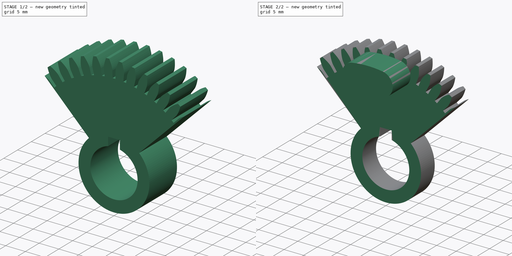
[diagram: build sequence overview — one tinted view per stage of 2, left to right]
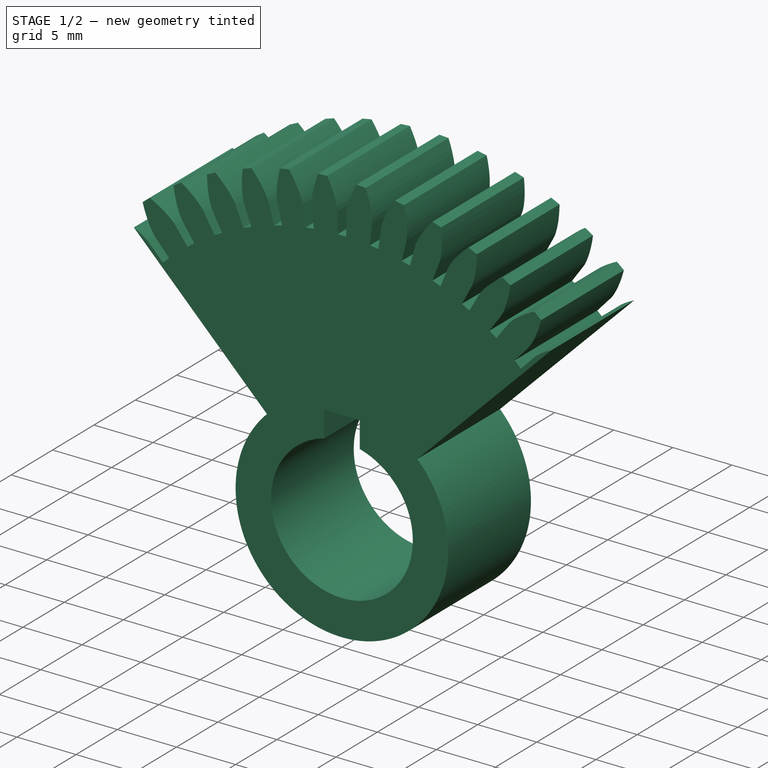
[diagram: stage 1 of 2 — iso view after this stage's code; geometry added in this stage tinted green]
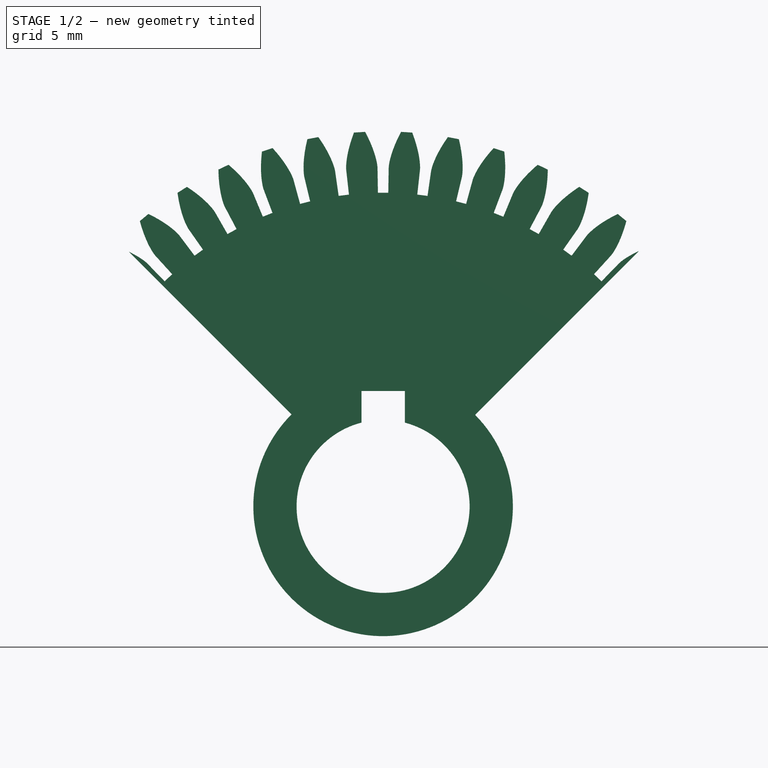
[diagram: stage 1 of 2 — front view after this stage's code; geometry added in this stage tinted green]
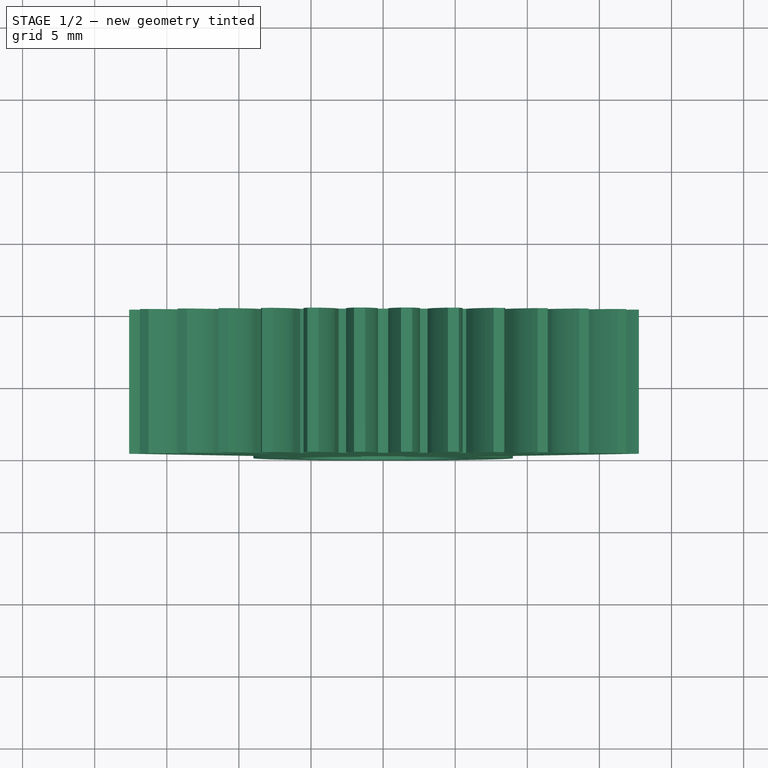
[diagram: stage 1 of 2 — top view after this stage's code; geometry added in this stage tinted green]
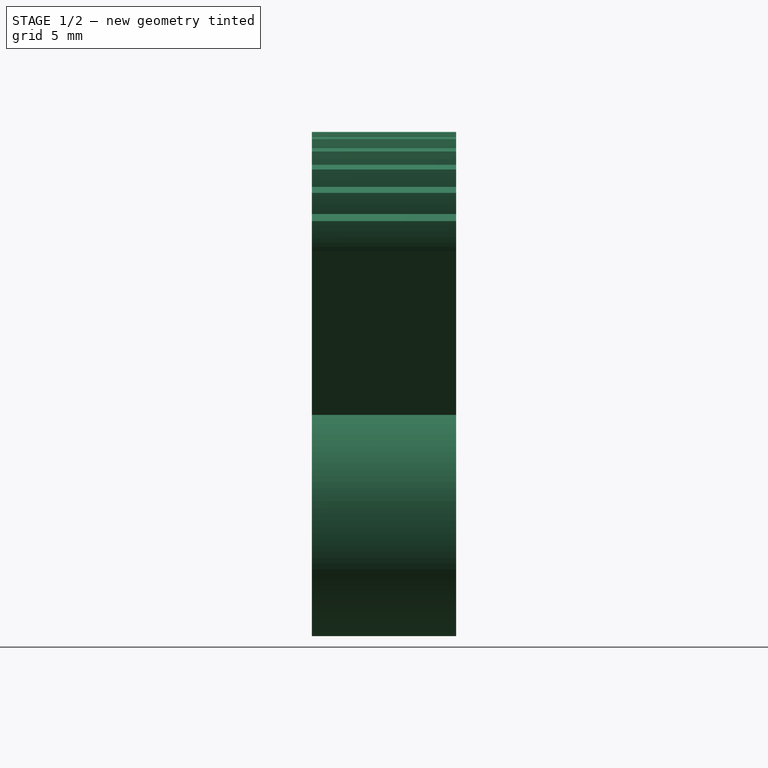
[diagram: stage 1 of 2 — right view after this stage's code; geometry added in this stage tinted green]
FCSTD DOCUMENT  (FreeCAD 1.0R39319 (Git))
Label: QuaterGear
License: All rights reserved
LicenseURL: https://en.wikipedia.org/wiki/All_rights_reserved
objects: Sketcher::SketchObject×3, PartDesign::Pocket×2, PartDesign::FeaturePython×1, App::Link×1, PartDesign::Pad×1, PartDesign::Body×1
note: 18 computed .brp shape members not serialized (recipe doc carries the construction recipe); baked Part::Feature solids carry a one-line shape summary decoded from their .brp
EXTERNAL_REF file=Robot.FCStd obj=Spreadsheet

FEATURE [PartDesign::FeaturePython] InvoluteGear001  # WARN: FeaturePython — macro-defined, semantics opaque (R4)
  AttacherType = Attacher::AttachEngine3D
  Placement = pos=(0,0,0) rot=(-1,0,0;4.71239rad)
  Suppressed = false
  addendum_diameter = 50
  angular_backlash = 0
  axle_hole = false
  axle_holesize = 10
  backlash = 0
  clearance = 2.25
  double_helix = false
  head = 0
  head_fillet = 0
  height = 10
  helix_angle = 0
  module = 1
  num_teeth = 50
  numpoints = 20
  offset_hole = false
  offset_holeoffset = 10
  offset_holesize = 10
  pitch_diameter = 50
  pressure_angle = 20
  properties_from_tool = false
  reversed_backlash = false
  root_diameter = 43.5
  root_fillet = 0
  shift = 0
  simple = false
  transverse_pitch = 3.14159
  traverse_module = 1
  undercut = false
  version = 1.3.0
  expr: angular_backlash = backlash / pitch_diameter * 360 ° / pi
FEATURE [Sketcher::SketchObject] Sketch
  ArcFitTolerance = 1e-06
  AttachmentSupport = -> [InvoluteGear001]
  FullyConstrained = false
  MakeInternals = false
  MapMode = 5
  Placement = pos=(0,-10,0) rot=(1,0,0;1.5708rad)
  expr: Constraints[10] = 360 - <<Spreadsheet>>.CutAngle * 2
  expr: Constraints[12] = <<Spreadsheet>>.ShaftDiameter * 2
  expr: Constraints[2] = <<Spreadsheet>>.CutAngle
  expr: Constraints[3] = 180 - <<Spreadsheet>>.CutAngle
  expr: Constraints[9] = 0 mm
  sketch-geometry (8):
    g0: ArcOfCircle CenterX=0 CenterY=0 CenterZ=0 NormalX=0 NormalY=0 NormalZ=1 AngleXU=0 Radius=9 StartAngle=2.35358 EndAngle=7.06597
    g1: LineSegment StartX=6.38059 StartY=6.34728 StartZ=0 EndX=39.2109 EndY=39.1775 EndZ=0
    g2: LineSegment StartX=-6.34728 StartY=6.38059 StartZ=0 EndX=-39.1775 EndY=39.2109 EndZ=0
    g3: ArcOfCircle CenterX=0 CenterY=0 CenterZ=0 NormalX=0 NormalY=0 NormalZ=1 AngleXU=0 Radius=55.429 StartAngle=2.35577 EndAngle=7.06816
    g4: ArcOfCircle CenterX=0 CenterY=0 CenterZ=0 NormalX=0 NormalY=0 NormalZ=1 AngleXU=0 Radius=6 StartAngle=1.82348 EndAngle=7.60029
    g5: LineSegment StartX=-1.5 StartY=8 StartZ=0 EndX=-1.5 EndY=5.80948 EndZ=0
    g6: LineSegment StartX=1.50588 StartY=5.80795 StartZ=0 EndX=1.50588 EndY=8 EndZ=0
    g7: LineSegment StartX=1.50588 StartY=8 StartZ=0 EndX=-1.5 EndY=8 EndZ=0
  constraints (22):
    c: Diameter(g0) = 18
    c: PointOnObject(g0,g-2)
    c: Angle(g-1,g1) = 0.785398
    c: Angle(g-1,g2) = 2.35619
    c: Coincident(g3,g0)
    c: Coincident(g2,g3)
    c: Coincident(g1,g3)
    c: Coincident(g2,g0)
    c: Coincident(g1,g0)
    c: DistanceY(g0,g-1) = 0
    c: Angle(g0) = 4.71239
    c: Coincident(g4,g0)
    c: Diameter(g4) = 12
    c: Coincident(g6,g7)
    c: Coincident(g7,g5)
    c: Vertical(g5)
    c: Vertical(g6)
    c: Horizontal(g7)
    c: Distance(g-2,g5) = 1.5
    c: Distance(g4,g7) = 2
    c: Coincident(g5,g4)
    c: Coincident(g6,g4)
FEATURE [PartDesign::Pocket] Pocket
  BaseFeature = -> InvoluteGear001
  Direction = (0,1,-2e-16)
  Length = 5
  Length2 = 5
  Placement = pos=(0,0,0) rot=(-1,0,0;4.71239rad)
  Profile = -> Sketch
  ReferenceAxis = -> Sketch [N_Axis]
  Refine = true
  Suppressed = false
  Type = 1
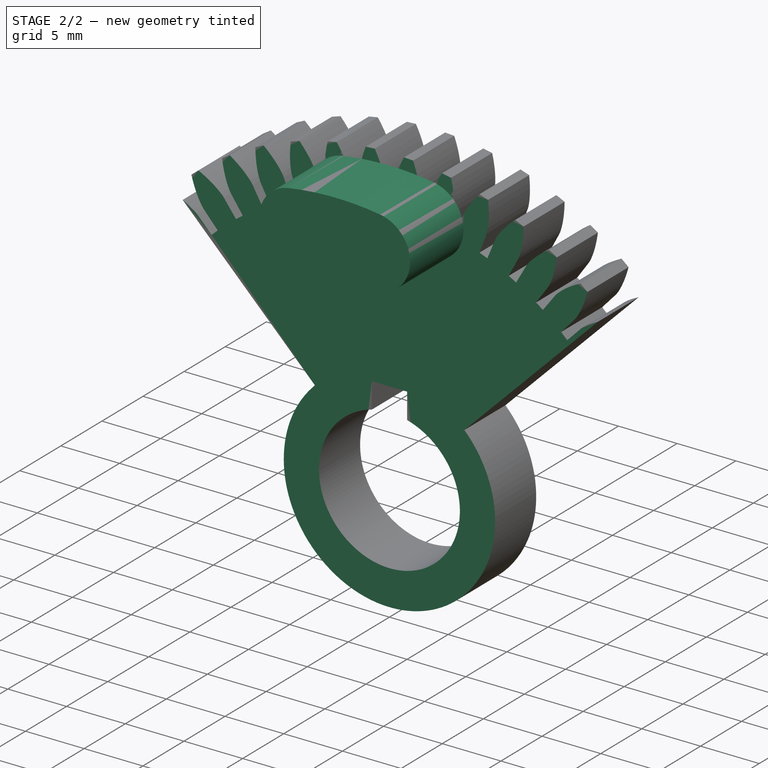
[diagram: stage 2 of 2 — iso view after this stage's code; geometry added in this stage tinted green]
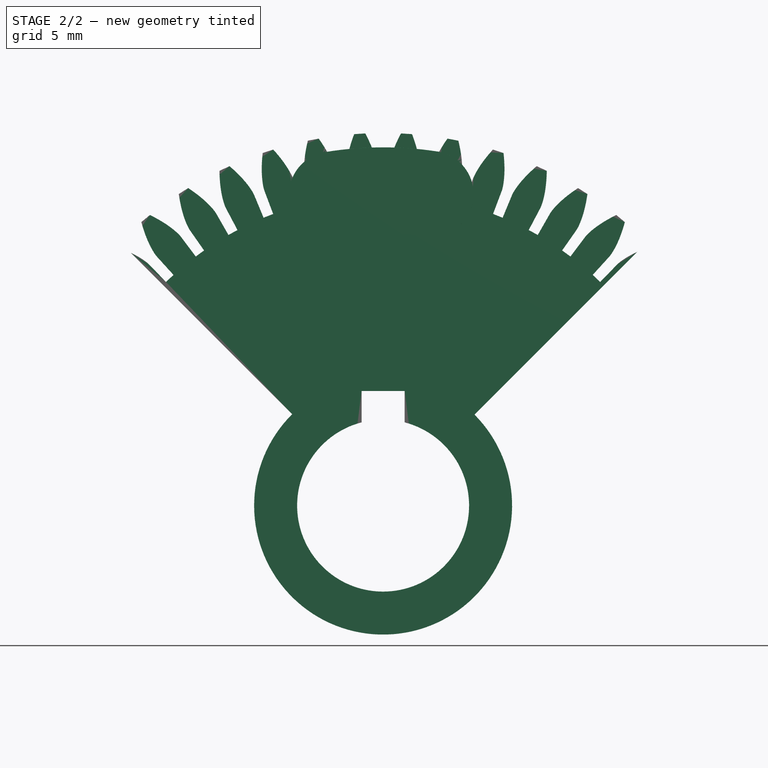
[diagram: stage 2 of 2 — front view after this stage's code; geometry added in this stage tinted green]
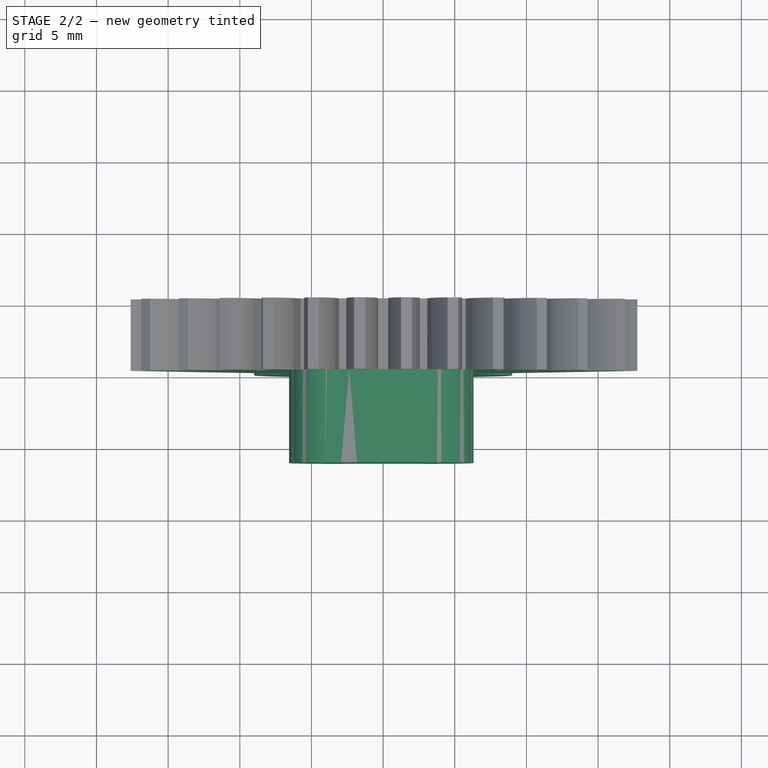
[diagram: stage 2 of 2 — top view after this stage's code; geometry added in this stage tinted green]
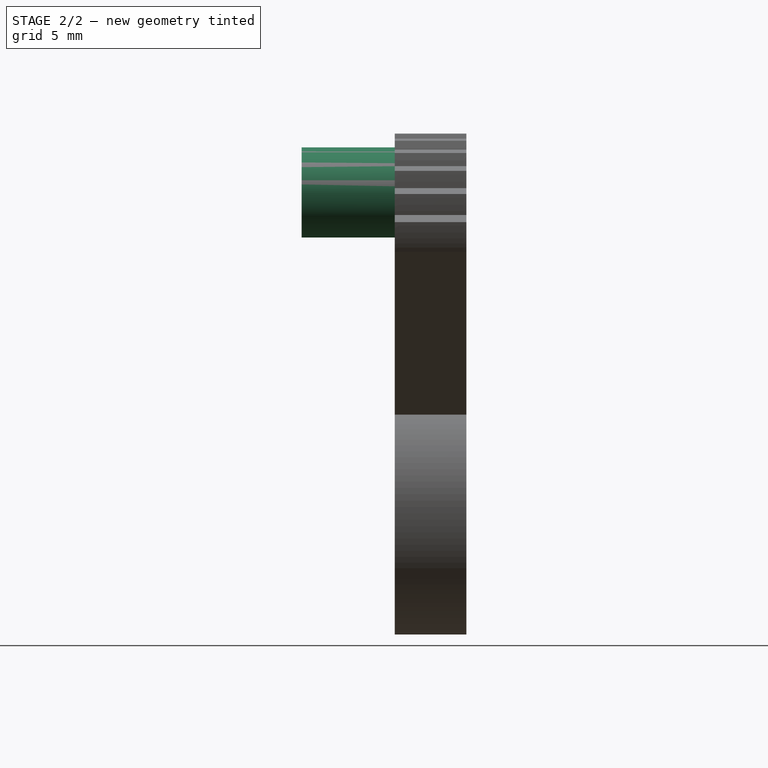
[diagram: stage 2 of 2 — right view after this stage's code; geometry added in this stage tinted green]
FEATURE [App::Link] Link  label="Spreadsheet"
  LinkedObject = -> <external Robot.FCStd>#Spreadsheet
FEATURE [Sketcher::SketchObject] Sketch001
  ArcFitTolerance = 1e-06
  AttachmentSupport = -> [Pocket]
  FullyConstrained = true
  MakeInternals = false
  MapMode = 5
  Placement = pos=(0,-10,0) rot=(1,0,0;1.5708rad)
  sketch-geometry (1):
    g0: Circle CenterX=0 CenterY=0 CenterZ=0 NormalX=0 NormalY=0 NormalZ=1 AngleXU=0 Radius=30
  constraints (2):
    c: Diameter(g0) = 60
    c: Coincident(g0,g-1)
FEATURE [PartDesign::Pocket] Pocket001
  BaseFeature = -> Pocket
  Direction = (0,1,-2e-16)
  Length = 5
  Length2 = 5
  Placement = pos=(0,0,0) rot=(-1,0,0;4.71239rad)
  Profile = -> Sketch001
  ReferenceAxis = -> Sketch001 [N_Axis]
  Refine = true
  Suppressed = false
  Type = 0
FEATURE [Sketcher::SketchObject] Sketch002
  ArcFitTolerance = 1e-06
  AttachmentSupport = -> [Pocket001]
  FullyConstrained = false
  MakeInternals = false
  MapMode = 5
  Placement = pos=(0,-5,0) rot=(1,0,0;1.5708rad)
  sketch-geometry (4):
    g0: ArcOfCircle CenterX=0 CenterY=0 CenterZ=0 NormalX=0 NormalY=0 NormalZ=1 AngleXU=0 Radius=25 StartAngle=1.41976 EndAngle=1.73335
    g1: ArcOfCircle CenterX=-3.56037 CenterY=21.71 CenterZ=0 NormalX=0 NormalY=0 NormalZ=1 AngleXU=0 Radius=3 StartAngle=1.73335 EndAngle=4.87494
    g2: ArcOfCircle CenterX=3.31009 CenterY=21.7496 CenterZ=0 NormalX=0 NormalY=0 NormalZ=1 AngleXU=0 Radius=3 StartAngle=4.56136 EndAngle=7.70295
    g3: ArcOfCircle CenterX=0 CenterY=0 CenterZ=0 NormalX=0 NormalY=0 NormalZ=1 AngleXU=0 Radius=19 StartAngle=1.41976 EndAngle=1.73335
  constraints (8):
    c: Coincident(g0,g3)
    c: Tangent(g3,g2) = 1.5708
    c: Tangent(g3,g1) = 1.5708
    c: Tangent(g0,g2) = -1.5708
    c: Tangent(g0,g1) = -1.5708
    c: Coincident(g0,g-1)
    c: Radius(g2) = 3
    c: Distance(g2,g-1) = 22
FEATURE [PartDesign::Pad] Pad
  BaseFeature = -> Pocket001
  Direction = (0,-1,2e-16)
  Length = 6.5
  Length2 = 10
  Placement = pos=(0,0,0) rot=(-1,0,0;4.71239rad)
  Profile = -> Sketch002
  ReferenceAxis = -> Sketch002 [N_Axis]
  Refine = true
  Suppressed = false
  Type = 0
FEATURE [PartDesign::Body] Body  label="QuaterGear"
  AllowCompound = false
  Group = -> [InvoluteGear001,Sketch,Pocket,Sketch001,Pocket001,Sketch002,Pad]
  Origin = -> Origin001
  Tip = -> Pad
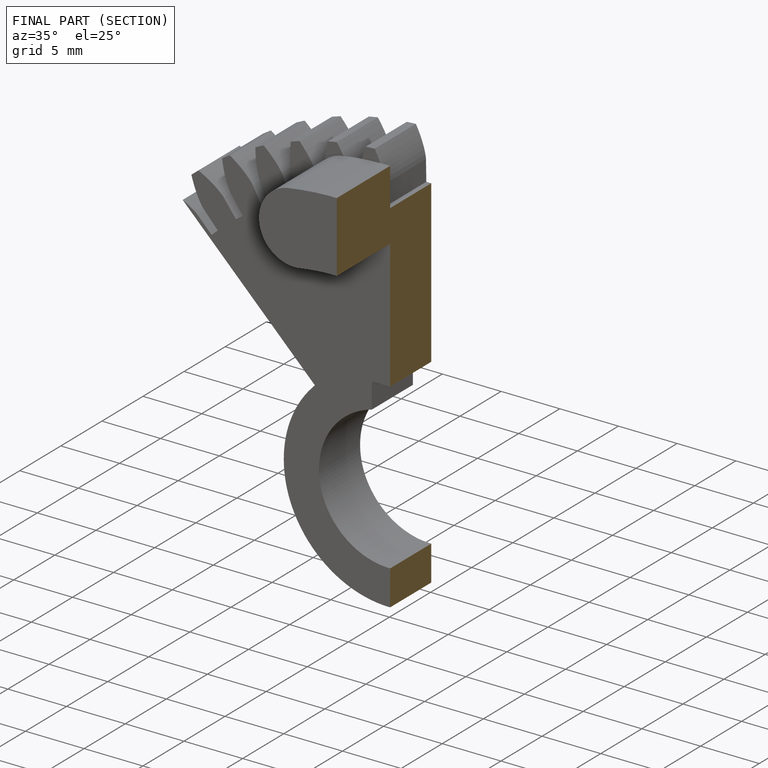
[diagram: finished part — half-section view (interior)]
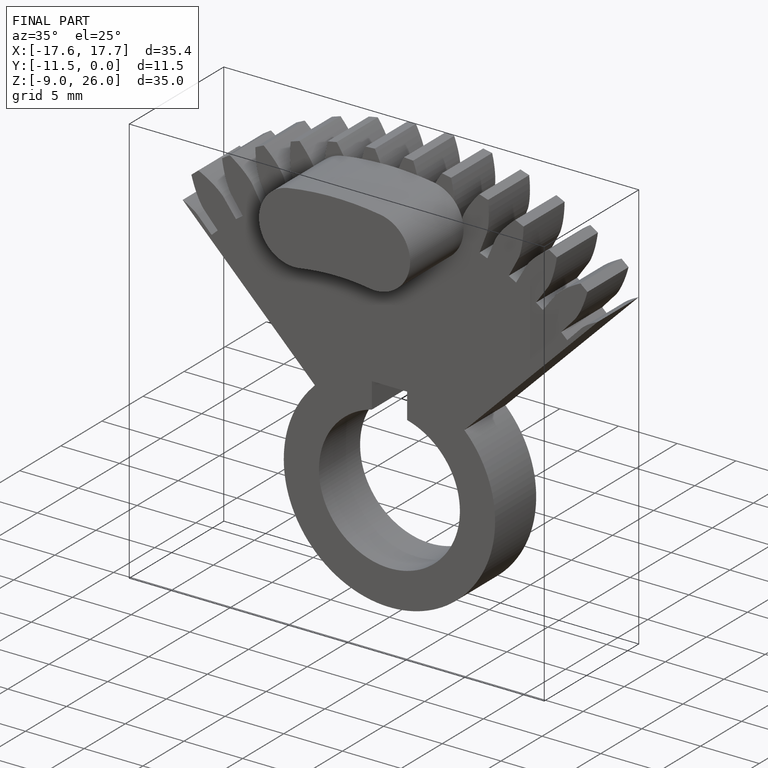
[diagram: finished part — iso view with bounding-box wireframe]
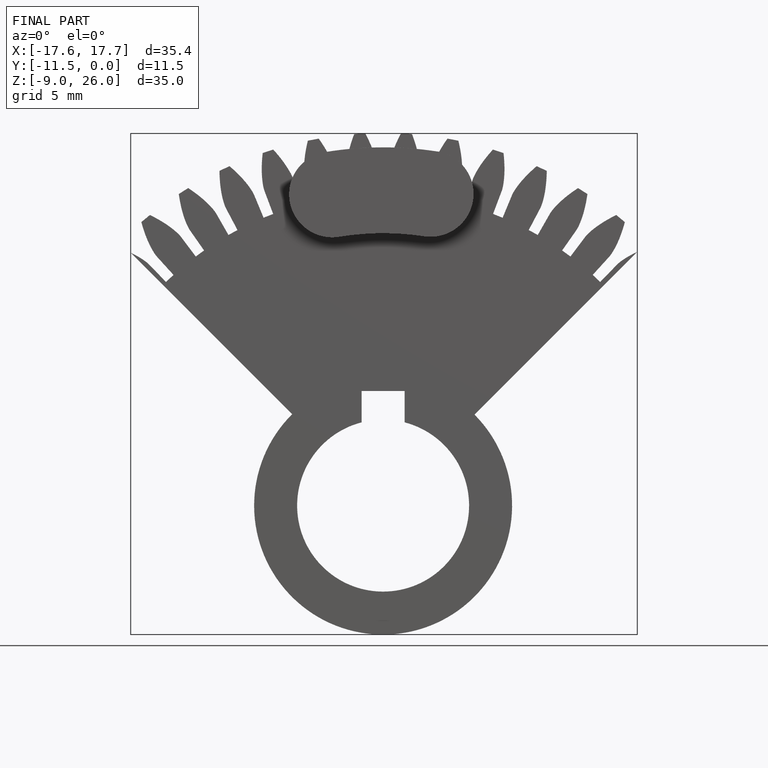
[diagram: finished part — front view with bounding-box wireframe]
